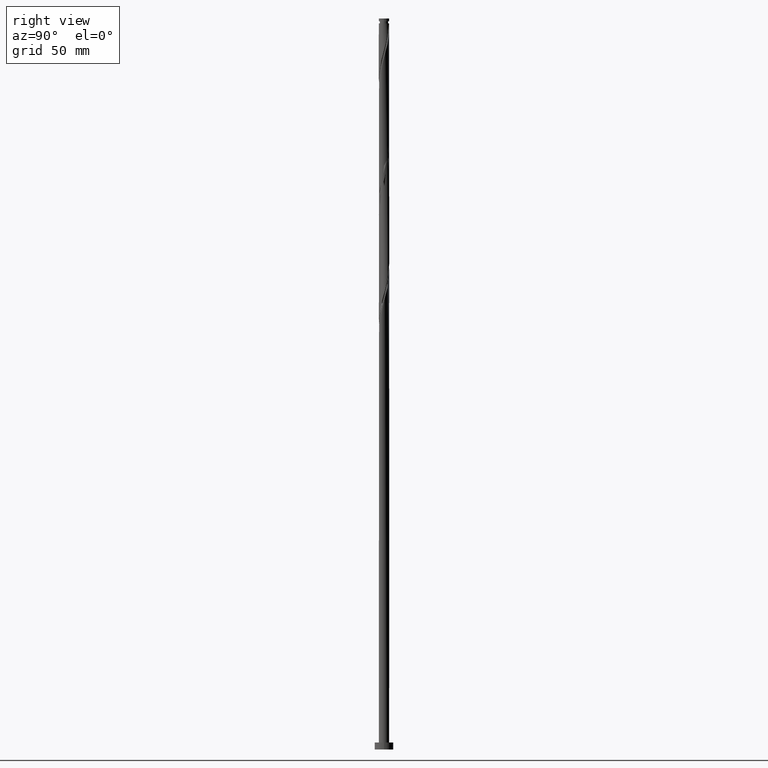
[diagram: clean part render]
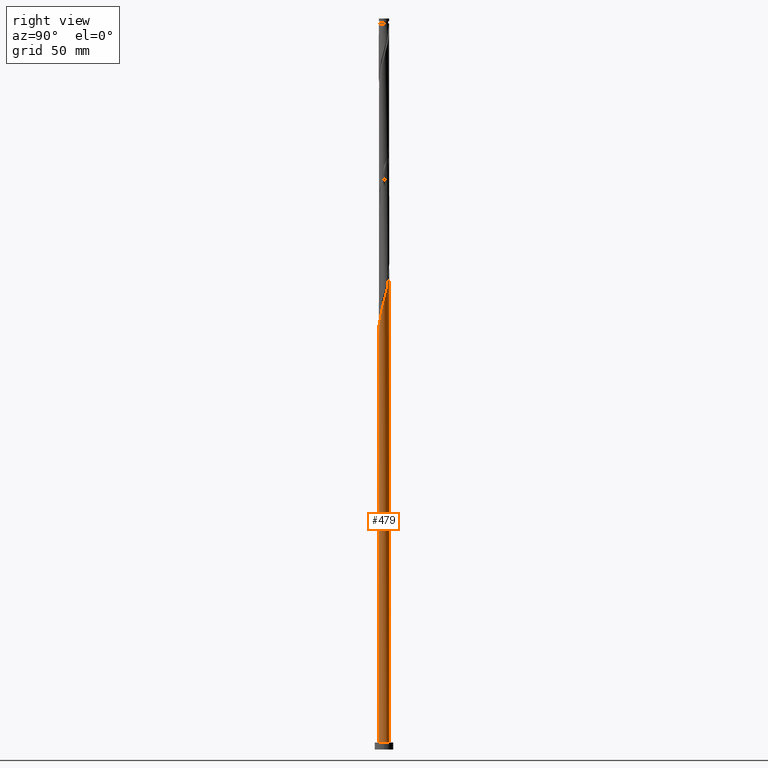
[diagram: same view with one face highlighted and labeled with its STEP entity id]
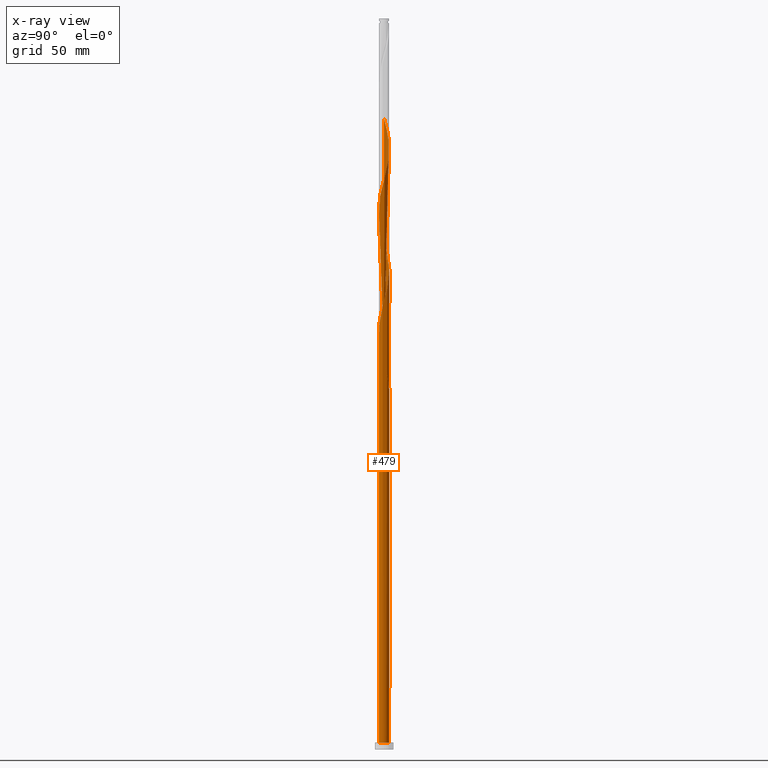
[diagram: x-ray of the same camera — body ghosted, the highlighted face saturated]
A machine part, right view. The second image highlights one B-rep face of the part: STEP entity #479.
The next image is the same camera in x-ray: the body ghosted, the highlighted face saturated — about 0% of this face is hidden behind the body in this view.
In plain terms, the highlighted cylindrical surface (bore or boss wall) has radius 2.25 mm, axis along (-0, -0, -1).
Its self-contained STEP definition (entity closure, byte-faithful):
#1 = CARTESIAN_POINT ( 'NONE',  ( -1.639118940635364119, -1.562068662012233933, 225.7445797550641942 ) ) ;
#4 = CARTESIAN_POINT ( 'NONE',  ( -1.250429829036464380, 1.887642616875907065, 161.9945797550642510 ) ) ;
#10 = CARTESIAN_POINT ( 'NONE',  ( 2.249348536561817991, -0.05414019825619617587, 192.9320797550641657 ) ) ;
#75 = CARTESIAN_POINT ( 'NONE',  ( -2.243248401257517788, 0.3075809107306282653, 165.7445797550642226 ) ) ;
#81 = EDGE_CURVE ( 'NONE', #1130, #1681, #345, .T. ) ;
#82 = DIRECTION ( 'NONE',  ( -0.000000000000000000, -0.000000000000000000, -1.000000000000000000 ) ) ;
#89 = CIRCLE ( 'NONE', #267, 2.250000000000000000 ) ;
#94 = CARTESIAN_POINT ( 'NONE',  ( -2.180905345038905097, 0.5533099276000278399, 269.8070797550643078 ) ) ;
#97 = CARTESIAN_POINT ( 'NONE',  ( 0.4477443466979814657, -2.205000000000001847, 181.6820797550641373 ) ) ;
#98 = CARTESIAN_POINT ( 'NONE',  ( 0.000000000000000000, 0.000000000000000000, 315.0000000000000000 ) ) ;
#111 = CARTESIAN_POINT ( 'NONE',  ( 1.250429829036465490, 1.887642616875907953, 253.8695797550641373 ) ) ;
#118 = AXIS2_PLACEMENT_3D ( 'NONE', #98, #383, #365 ) ;
#124 = CARTESIAN_POINT ( 'NONE',  ( 1.024734386752946591, 2.003102452848099180, 202.3070797550641942 ) ) ;
#126 = ORIENTED_EDGE ( 'NONE', *, *, #1792, .F. ) ;
#132 = CARTESIAN_POINT ( 'NONE',  ( -2.243248401257517788, 0.3075809107306282653, 218.2445797550641942 ) ) ;
#141 = CARTESIAN_POINT ( 'NONE',  ( 2.255448671866118193, 0.1993005142182362743, 193.8695797550642226 ) ) ;
#148 = ORIENTED_EDGE ( 'NONE', *, *, #165, .F. ) ;
#150 = CARTESIAN_POINT ( 'NONE',  ( -0.1993005142182361078, 2.255448671866118193, 206.9945797550642226 ) ) ;
#165 = EDGE_CURVE ( 'NONE', #1681, #857, #1027, .T. ) ;
#198 = CARTESIAN_POINT ( 'NONE',  ( -2.250000000000002220, -1.929156227657196178E-15, 166.8825626771580914 ) ) ;
#215 = CARTESIAN_POINT ( 'NONE',  ( -0.9271771204911514186, 2.050083556160028131, 157.3070797550641942 ) ) ;
#239 = DIRECTION ( 'NONE',  ( 1.000000000000000000, 0.000000000000000000, 0.000000000000000000 ) ) ;
#243 = CARTESIAN_POINT ( 'NONE',  ( 2.250000000000000000, 0.000000000000000000, 3.000000000000000000 ) ) ;
#249 = CARTESIAN_POINT ( 'NONE',  ( 2.255448671866118193, 0.1993005142182362743, 246.3695797550642510 ) ) ;
#260 = CARTESIAN_POINT ( 'NONE',  ( 1.639118940635364341, 1.562068662012233933, 251.9945797550642226 ) ) ;
#264 = CARTESIAN_POINT ( 'NONE',  ( -2.255448671866118193, -0.1993005142182365241, 220.1195797550642226 ) ) ;
#267 = AXIS2_PLACEMENT_3D ( 'NONE', #1507, #1759, #239 ) ;
#275 = CARTESIAN_POINT ( 'NONE',  ( 2.050083556160028131, 0.9271771204911510855, 196.6820797550641657 ) ) ;
#283 = CARTESIAN_POINT ( 'NONE',  ( -0.3075809107306283763, -2.243248401257517788, 231.3695797550642510 ) ) ;
#288 = LINE ( 'NONE', #429, #1414 ) ;
#292 = CARTESIAN_POINT ( 'NONE',  ( 0.3075809107306285428, 2.243248401257516900, 205.1195797550642226 ) ) ;
#303 = CARTESIAN_POINT ( 'NONE',  ( 0.9271771204911511965, -2.050083556160028131, 236.0570797550641942 ) ) ;
#305 = CARTESIAN_POINT ( 'NONE',  ( -1.792367362410765663, 1.360117361908404376, 164.8070797550641657 ) ) ;
#345 =( BOUNDED_CURVE ( )  B_SPLINE_CURVE ( 2, ( #358, #1165, #215, #1292, #1416, #765, #462, #613, #1149, #1447, #1715, #75, #1436, #992, #198 ),
 .UNSPECIFIED., .F., .T. ) 
 B_SPLINE_CURVE_WITH_KNOTS ( ( 3, 2, 2, 2, 2, 2, 2, 3 ),
 ( 0.000000000000000000, 0.008928571428571396851, 0.01785714285714290472, 0.02678571428571430157, 0.03571428571428569843, 0.04464285714285709528, 0.05357142857142860315, 0.05453034012992202806 ),
 .UNSPECIFIED. ) 
 CURVE ( )  GEOMETRIC_REPRESENTATION_ITEM ( )  RATIONAL_B_SPLINE_CURVE ( ( 0.9090909090909616852, 0.9033747362666364467, 0.9090909090909616852, 0.9033747362666364467, 0.9090909090909616852, 0.9033747362666364467, 0.9090909090909616852, 0.9033747362666364467, 0.9090909090909616852, 0.9033747362666364467, 0.9090909090909616852, 0.9033747362666364467, 0.9090909090909616852, 0.9084770030215034708, 0.9079949616362317233 ) ) 
 REPRESENTATION_ITEM ( '' )  );
#348 = CARTESIAN_POINT ( 'NONE',  ( -0.4477443466979812436, 2.205000000000001847, 155.4320797550641942 ) ) ;
#358 = CARTESIAN_POINT ( 'NONE',  ( -0.4477443466979812436, 2.205000000000001847, 155.4320797550641942 ) ) ;
#365 = DIRECTION ( 'NONE',  ( -1.000000000000000000, 0.000000000000000000, 0.000000000000000000 ) ) ;
#369 = VECTOR ( 'NONE', #82, 1000.000000000000000 ) ;
#377 = CARTESIAN_POINT ( 'NONE',  ( 1.887642616875908175, -1.250429829036465490, 240.7445797550641942 ) ) ;
#382 = CARTESIAN_POINT ( 'NONE',  ( 1.562068662012233933, -1.639118940635364119, 186.3695797550642510 ) ) ;
#383 = DIRECTION ( 'NONE',  ( -0.000000000000000000, -0.000000000000000000, -1.000000000000000000 ) ) ;
#386 = VERTEX_POINT ( 'NONE', #1009 ) ;
#387 = CARTESIAN_POINT ( 'NONE',  ( -1.887642616875908175, 1.250429829036465046, 266.9945797550641942 ) ) ;
#394 = CARTESIAN_POINT ( 'NONE',  ( -0.1993005142182361078, 2.255448671866118193, 259.4945797550641942 ) ) ;
#398 = CARTESIAN_POINT ( 'NONE',  ( -2.250000000000002220, -1.929156227657196178E-15, 166.8825626771580914 ) ) ;
#403 = CARTESIAN_POINT ( 'NONE',  ( 2.180905345038904652, -0.5533099276000280620, 243.5570797550641942 ) ) ;
#407 = CARTESIAN_POINT ( 'NONE',  ( 0.05414019825619634935, 2.249348536561817991, 206.0570797550642226 ) ) ;
#418 = CARTESIAN_POINT ( 'NONE',  ( -1.945615784186170538, -1.158166061804576374, 223.8695797550641942 ) ) ;
#424 = CARTESIAN_POINT ( 'NONE',  ( 1.444774384835914915, 1.724855639444071054, 200.4320797550642510 ) ) ;
#429 = CARTESIAN_POINT ( 'NONE',  ( -2.250000000000000000, 0.000000000000000000, 315.0000000000000000 ) ) ;
#432 = CARTESIAN_POINT ( 'NONE',  ( -2.154551328133885946, -0.6961881791777264628, 221.9945797550642226 ) ) ;
#435 = CARTESIAN_POINT ( 'NONE',  ( -0.7990389444694264709, 2.118562288820290185, 160.1195797550642510 ) ) ;
#446 = CARTESIAN_POINT ( 'NONE',  ( -1.945615784186168984, 1.158166061804576152, 165.7445797550642226 ) ) ;
#462 = CARTESIAN_POINT ( 'NONE',  ( -1.724855639444071276, 1.444774384835914693, 161.0570797550642226 ) ) ;
#478 = CARTESIAN_POINT ( 'NONE',  ( -2.250000000000000000, 0.000000000000000000, 3.000000000000000000 ) ) ;
#479 = ADVANCED_FACE ( 'NONE', ( #1603 ), #1466, .T. ) ;
#491 = VERTEX_POINT ( 'NONE', #243 ) ;
#504 = DIRECTION ( 'NONE',  ( -1.000000000000000000, 0.000000000000000000, 0.000000000000000000 ) ) ;
#512 = CARTESIAN_POINT ( 'NONE',  ( 2.249348536561817991, -0.05414019825619617587, 245.4320797550641942 ) ) ;
#517 = CARTESIAN_POINT ( 'NONE',  ( -2.050083556160028131, -0.9271771204911514186, 170.4320797550641942 ) ) ;
#524 = CARTESIAN_POINT ( 'NONE',  ( -2.205000000000001847, -0.4477443466979815212, 168.5570797550641942 ) ) ;
#531 = CARTESIAN_POINT ( 'NONE',  ( 0.05414019825619634935, 2.249348536561817991, 258.5570797550641942 ) ) ;
#534 = CARTESIAN_POINT ( 'NONE',  ( -2.154551328133885946, -0.6961881791777264628, 169.4945797550641942 ) ) ;
#541 = CARTESIAN_POINT ( 'NONE',  ( -1.360117361908405487, 1.792367362410767440, 264.1820797550641373 ) ) ;
#545 = CARTESIAN_POINT ( 'NONE',  ( -1.360117361908405487, 1.792367362410767440, 211.6820797550641942 ) ) ;
#547 = CARTESIAN_POINT ( 'NONE',  ( -2.154551328133884169, 0.6961881791777263517, 167.6195797550642794 ) ) ;
#552 = CARTESIAN_POINT ( 'NONE',  ( -1.024734386752946369, -2.003102452848099180, 228.5570797550641942 ) ) ;
#554 = CARTESIAN_POINT ( 'NONE',  ( -2.204999999999998739, 0.4477443466979816322, 168.5570797550641657 ) ) ;
#560 = CARTESIAN_POINT ( 'NONE',  ( -1.724855639444071276, 1.444774384835914693, 213.5570797550641657 ) ) ;
#566 = CARTESIAN_POINT ( 'NONE',  ( 2.205000000000001847, 0.4477443466979812436, 194.8070797550642226 ) ) ;
#568 = CARTESIAN_POINT ( 'NONE',  ( -2.250000000000000888, 2.354540773020688484E-15, 170.2315968329703253 ) ) ;
#603 = CARTESIAN_POINT ( 'NONE',  ( -2.250000000000002220, 1.548549002858290635E-15, 271.8825626771580914 ) ) ;
#606 = VERTEX_POINT ( 'NONE', #635 ) ;
#607 = AXIS2_PLACEMENT_3D ( 'NONE', #1046, #630, #504 ) ;
#613 = CARTESIAN_POINT ( 'NONE',  ( -1.887642616875908175, 1.250429829036465046, 161.9945797550641657 ) ) ;
#630 = DIRECTION ( 'NONE',  ( 0.000000000000000000, -0.000000000000000000, -1.000000000000000000 ) ) ;
#635 = CARTESIAN_POINT ( 'NONE',  ( -2.250000000000000888, 2.354540773020688484E-15, 170.2315968329703253 ) ) ;
#640 = DIRECTION ( 'NONE',  ( 0.000000000000000000, 0.000000000000000000, 1.000000000000000000 ) ) ;
#643 = CARTESIAN_POINT ( 'NONE',  ( 0.6961881791777264628, -2.154551328133885946, 182.6195797550642510 ) ) ;
#644 =( BOUNDED_CURVE ( )  B_SPLINE_CURVE ( 2, ( #398, #1206, #524, #534, #517, #1503, #907, #1061, #1180, #764, #1188, #1754, #1609, #1473, #780, #1327, #97, #643, #1762, #1048, #1617, #382, #1087, #1217, #1666, #1510, #1358, #832, #10, #141, #566, #1524, #275, #1644, #1654, #1789, #424, #816, #124, #1385, #1105, #292, #407, #150, #697, #942, #675, #806, #545, #1227, #560, #962, #1080, #1094, #1244, #132, #1366, #264, #1673, #432, #682, #418, #1798, #1, #951, #1376, #552, #1517, #1236, #283, #823, #688, #970, #1534, #303, #843, #1776, #1324, #777, #377, #1489, #1212, #403, #1176, #512, #249, #939, #914, #672, #794, #1344, #260, #661, #111, #1203, #1632, #1186, #802, #531, #394, #1069, #1499, #1785, #1055, #541, #1354, #1077, #387, #1749, #1642, #94, #922, #1482, #931, #786 ),
 .UNSPECIFIED., .F., .T. ) 
 B_SPLINE_CURVE_WITH_KNOTS ( ( 3, 2, 2, 2, 2, 2, 2, 2, 2, 2, 2, 2, 2, 2, 2, 2, 2, 2, 2, 2, 2, 2, 2, 2, 2, 2, 2, 2, 2, 2, 2, 2, 2, 2, 2, 2, 2, 2, 2, 2, 2, 2, 2, 2, 2, 2, 2, 2, 2, 2, 2, 2, 2, 2, 2, 2, 2, 3 ),
 ( 0.05453034012992202806, 0.06250000000000000000, 0.07142857142857139685, 0.08035714285714290472, 0.08928571428571430157, 0.09821428571428569843, 0.1071428571428570953, 0.1160714285714286031, 0.1250000000000000000, 0.1339285714285713969, 0.1428571428571429047, 0.1517857142857143016, 0.1607142857142856984, 0.1696428571428570953, 0.1785714285714286031, 0.1875000000000000000, 0.1964285714285713969, 0.2053571428571429047, 0.2142857142857143016, 0.2232142857142856984, 0.2321428571428570953, 0.2410714285714286031, 0.2500000000000000000, 0.2589285714285713969, 0.2678571428571429047, 0.2767857142857143016, 0.2857142857142856984, 0.2946428571428570953, 0.3035714285714286031, 0.3125000000000000000, 0.3214285714285713969, 0.3303571428571429047, 0.3392857142857143016, 0.3482142857142856984, 0.3571428571428570953, 0.3660714285714286031, 0.3750000000000000000, 0.3839285714285713969, 0.3928571428571429047, 0.4017857142857143016, 0.4107142857142856984, 0.4196428571428570953, 0.4285714285714286031, 0.4375000000000000000, 0.4464285714285713969, 0.4553571428571429047, 0.4642857142857143016, 0.4732142857142856984, 0.4821428571428570953, 0.4910714285714286031, 0.5000000000000000000, 0.5089285714285713969, 0.5178571428571427937, 0.5267857142857143016, 0.5357142857142856984, 0.5446428571428572063, 0.5535714285714286031, 0.5545303401299217505 ),
 .UNSPECIFIED. ) 
 CURVE ( )  GEOMETRIC_REPRESENTATION_ITEM ( )  RATIONAL_B_SPLINE_CURVE ( ( 0.9079949616362317233, 0.9039886423360947720, 0.9090909090909616852, 0.9033747362666364467, 0.9090909090909616852, 0.9033747362666364467, 0.9090909090909616852, 0.9033747362666364467, 0.9090909090909616852, 0.9033747362666364467, 0.9090909090909616852, 0.9033747362666364467, 0.9090909090909616852, 0.9033747362666364467, 0.9090909090909616852, 0.9033747362666364467, 0.9090909090909616852, 0.9033747362666364467, 0.9090909090909616852, 0.9033747362666364467, 0.9090909090909616852, 0.9033747362666364467, 0.9090909090909616852, 0.9033747362666364467, 0.9090909090909616852, 0.9033747362666364467, 0.9090909090909616852, 0.9033747362666364467, 0.9090909090909616852, 0.9033747362666364467, 0.9090909090909616852, 0.9033747362666364467, 0.9090909090909616852, 0.9033747362666364467, 0.9090909090909616852, 0.9033747362666364467, 0.9090909090909616852, 0.9033747362666364467, 0.9090909090909616852, 0.9033747362666364467, 0.9090909090909616852, 0.9033747362666364467, 0.9090909090909616852, 0.9033747362666364467, 0.9090909090909616852, 0.9033747362666364467, 0.9090909090909616852, 0.9033747362666364467, 0.9090909090909616852, 0.9033747362666364467, 0.9090909090909616852, 0.9033747362666364467, 0.9090909090909616852, 0.9033747362666364467, 0.9090909090909616852, 0.9033747362666364467, 0.9090909090909616852, 0.9033747362666364467, 0.9090909090909616852, 0.9033747362666364467, 0.9090909090909616852, 0.9033747362666364467, 0.9090909090909616852, 0.9033747362666364467, 0.9090909090909616852, 0.9033747362666364467, 0.9090909090909616852, 0.9033747362666364467, 0.9090909090909616852, 0.9033747362666364467, 0.9090909090909616852, 0.9033747362666364467, 0.9090909090909616852, 0.9033747362666364467, 0.9090909090909616852, 0.9033747362666364467, 0.9090909090909616852, 0.9033747362666364467, 0.9090909090909616852, 0.9033747362666364467, 0.9090909090909616852, 0.9033747362666364467, 0.9090909090909616852, 0.9033747362666364467, 0.9090909090909616852, 0.9033747362666364467, 0.9090909090909616852, 0.9033747362666364467, 0.9090909090909616852, 0.9033747362666364467, 0.9090909090909616852, 0.9033747362666364467, 0.9090909090909616852, 0.9033747362666364467, 0.9090909090909616852, 0.9033747362666364467, 0.9090909090909616852, 0.9033747362666364467, 0.9090909090909616852, 0.9033747362666364467, 0.9090909090909616852, 0.9033747362666364467, 0.9090909090909616852, 0.9033747362666364467, 0.9090909090909616852, 0.9033747362666364467, 0.9090909090909616852, 0.9033747362666364467, 0.9090909090909616852, 0.9033747362666364467, 0.9090909090909616852, 0.9033747362666364467, 0.9090909090909616852, 0.9084770030215036929, 0.9079949616362321674 ) ) 
 REPRESENTATION_ITEM ( '' )  );
#661 = CARTESIAN_POINT ( 'NONE',  ( 1.444774384835914915, 1.724855639444071054, 252.9320797550641657 ) ) ;
#672 = CARTESIAN_POINT ( 'NONE',  ( 2.050083556160028131, 0.9271771204911510855, 249.1820797550641373 ) ) ;
#675 = CARTESIAN_POINT ( 'NONE',  ( -0.9271771204911514186, 2.050083556160028131, 209.8070797550642226 ) ) ;
#682 = CARTESIAN_POINT ( 'NONE',  ( -2.050083556160028131, -0.9271771204911514186, 222.9320797550641657 ) ) ;
#684 = CARTESIAN_POINT ( 'NONE',  ( -1.444774384835913139, 1.724855639444069721, 162.9320797550641657 ) ) ;
#688 = CARTESIAN_POINT ( 'NONE',  ( 0.1993005142182363854, -2.255448671866118193, 233.2445797550642226 ) ) ;
#697 = CARTESIAN_POINT ( 'NONE',  ( -0.4477443466979811326, 2.205000000000001847, 207.9320797550641942 ) ) ;
#717 = CIRCLE ( 'NONE', #607, 2.250000000000000000 ) ;
#740 = EDGE_CURVE ( 'NONE', #606, #386, #842, .T. ) ;
#759 = EDGE_LOOP ( 'NONE', ( #126, #1028, #987, #1735, #938, #148, #965, #1718, #1210 ) ) ;
#764 = CARTESIAN_POINT ( 'NONE',  ( -1.250429829036465046, -1.887642616875907953, 175.1195797550642226 ) ) ;
#765 = CARTESIAN_POINT ( 'NONE',  ( -1.562068662012234377, 1.639118940635364119, 160.1195797550641657 ) ) ;
#777 = CARTESIAN_POINT ( 'NONE',  ( 1.724855639444071054, -1.444774384835914915, 239.8070797550641942 ) ) ;
#780 = CARTESIAN_POINT ( 'NONE',  ( -0.05414019825619597465, -2.249348536561817991, 179.8070797550642226 ) ) ;
#786 = CARTESIAN_POINT ( 'NONE',  ( -2.250000000000002220, 1.548549002858290635E-15, 271.8825626771580914 ) ) ;
#794 = CARTESIAN_POINT ( 'NONE',  ( 1.945615784186170538, 1.158166061804575486, 250.1195797550641657 ) ) ;
#802 = CARTESIAN_POINT ( 'NONE',  ( 0.3075809107306285428, 2.243248401257516900, 257.6195797550641373 ) ) ;
#806 = CARTESIAN_POINT ( 'NONE',  ( -1.158166061804576596, 1.945615784186170538, 210.7445797550642226 ) ) ;
#816 = CARTESIAN_POINT ( 'NONE',  ( 1.250429829036465490, 1.887642616875907953, 201.3695797550641657 ) ) ;
#818 = CARTESIAN_POINT ( 'NONE',  ( -0.05414019825619550280, 2.249348536561815326, 157.3070797550642226 ) ) ;
#823 = CARTESIAN_POINT ( 'NONE',  ( -0.05414019825619597465, -2.249348536561817991, 232.3070797550641942 ) ) ;
#832 = CARTESIAN_POINT ( 'NONE',  ( 2.243248401257516900, -0.3075809107306285428, 191.9945797550641942 ) ) ;
#842 =( BOUNDED_CURVE ( )  B_SPLINE_CURVE ( 2, ( #568, #1790, #554, #547, #1389, #446, #305, #1658, #684, #4, #1511, #435, #1090, #944, #818, #1239, #1255 ),
 .UNSPECIFIED., .F., .T. ) 
 B_SPLINE_CURVE_WITH_KNOTS ( ( 3, 2, 2, 2, 2, 2, 2, 2, 3 ),
 ( 0.9295303401299218615, 0.9375000000000000000, 0.9464285714285713969, 0.9553571428571429047, 0.9642857142857143016, 0.9732142857142856984, 0.9821428571428570953, 0.9910714285714286031, 1.000000000000000000 ),
 .UNSPECIFIED. ) 
 CURVE ( )  GEOMETRIC_REPRESENTATION_ITEM ( )  RATIONAL_B_SPLINE_CURVE ( ( 0.9079949616362281706, 0.9039886423360906642, 0.9090909090909577994, 0.9033747362666324499, 0.9090909090909577994, 0.9033747362666324499, 0.9090909090909577994, 0.9033747362666324499, 0.9090909090909577994, 0.9033747362666324499, 0.9090909090909577994, 0.9033747362666324499, 0.9090909090909577994, 0.9033747362666324499, 0.9090909090909577994, 0.9033747362666324499, 0.9090909090909577994 ) ) 
 REPRESENTATION_ITEM ( '' )  );
#843 = CARTESIAN_POINT ( 'NONE',  ( 1.158166061804576374, -1.945615784186170538, 236.9945797550642510 ) ) ;
#857 = VERTEX_POINT ( 'NONE', #478 ) ;
#864 = CIRCLE ( 'NONE', #1293, 2.250000000000000000 ) ;
#907 = CARTESIAN_POINT ( 'NONE',  ( -1.792367362410767440, -1.360117361908405487, 172.3070797550641657 ) ) ;
#914 = CARTESIAN_POINT ( 'NONE',  ( 2.154551328133885946, 0.6961881791777262407, 248.2445797550641657 ) ) ;
#922 = CARTESIAN_POINT ( 'NONE',  ( -2.243248401257517788, 0.3075809107306282653, 270.7445797550641942 ) ) ;
#930 = CARTESIAN_POINT ( 'NONE',  ( -2.250000000000002220, -1.929156227657195783E-15, 166.8825626771580914 ) ) ;
#931 = CARTESIAN_POINT ( 'NONE',  ( -2.250000000000002220, 0.02707401862438604465, 271.7821999889329732 ) ) ;
#938 = ORIENTED_EDGE ( 'NONE', *, *, #1462, .T. ) ;
#939 = CARTESIAN_POINT ( 'NONE',  ( 2.205000000000001847, 0.4477443466979812436, 247.3070797550641942 ) ) ;
#942 = CARTESIAN_POINT ( 'NONE',  ( -0.6961881791777266848, 2.154551328133885946, 208.8695797550641373 ) ) ;
#944 = CARTESIAN_POINT ( 'NONE',  ( -0.3075809107306279322, 2.243248401257516456, 158.2445797550642510 ) ) ;
#951 = CARTESIAN_POINT ( 'NONE',  ( -1.444774384835914915, -1.724855639444071276, 226.6820797550641942 ) ) ;
#958 = VERTEX_POINT ( 'NONE', #603 ) ;
#962 = CARTESIAN_POINT ( 'NONE',  ( -1.887642616875908175, 1.250429829036465046, 214.4945797550641942 ) ) ;
#965 = ORIENTED_EDGE ( 'NONE', *, *, #81, .F. ) ;
#970 = CARTESIAN_POINT ( 'NONE',  ( 0.4477443466979814657, -2.205000000000001847, 234.1820797550641942 ) ) ;
#987 = ORIENTED_EDGE ( 'NONE', *, *, #165, .T. ) ;
#992 = CARTESIAN_POINT ( 'NONE',  ( -2.250000000000002220, 0.02707401862437820717, 166.7821999889330300 ) ) ;
#1009 = CARTESIAN_POINT ( 'NONE',  ( 0.4477443466979819653, 2.204999999999999183, 155.4320797550641942 ) ) ;
#1027 = LINE ( 'NONE', #1157, #369 ) ;
#1028 = ORIENTED_EDGE ( 'NONE', *, *, #1229, .F. ) ;
#1046 = CARTESIAN_POINT ( 'NONE',  ( 0.000000000000000000, 0.000000000000000000, 155.4320797550641942 ) ) ;
#1048 = CARTESIAN_POINT ( 'NONE',  ( 1.158166061804576374, -1.945615784186170538, 184.4945797550642510 ) ) ;
#1055 = CARTESIAN_POINT ( 'NONE',  ( -1.158166061804576596, 1.945615784186170538, 263.2445797550641942 ) ) ;
#1061 = CARTESIAN_POINT ( 'NONE',  ( -1.639118940635364119, -1.562068662012233933, 173.2445797550642226 ) ) ;
#1069 = CARTESIAN_POINT ( 'NONE',  ( -0.4477443466979811326, 2.205000000000001847, 260.4320797550641942 ) ) ;
#1077 = CARTESIAN_POINT ( 'NONE',  ( -1.724855639444071276, 1.444774384835914693, 266.0570797550641373 ) ) ;
#1080 = CARTESIAN_POINT ( 'NONE',  ( -2.003102452848099624, 1.024734386752946369, 215.4320797550641657 ) ) ;
#1087 = CARTESIAN_POINT ( 'NONE',  ( 1.724855639444071054, -1.444774384835914915, 187.3070797550641657 ) ) ;
#1090 = CARTESIAN_POINT ( 'NONE',  ( -0.5533099276000269517, 2.180905345038903320, 159.1820797550642510 ) ) ;
#1094 = CARTESIAN_POINT ( 'NONE',  ( -2.118562288820291517, 0.7990389444694274701, 216.3695797550642510 ) ) ;
#1105 = CARTESIAN_POINT ( 'NONE',  ( 0.5533099276000282840, 2.180905345038904652, 204.1820797550641942 ) ) ;
#1130 = VERTEX_POINT ( 'NONE', #348 ) ;
#1149 = CARTESIAN_POINT ( 'NONE',  ( -2.003102452848099624, 1.024734386752946369, 162.9320797550641942 ) ) ;
#1157 = CARTESIAN_POINT ( 'NONE',  ( -2.250000000000000000, 0.000000000000000000, 315.0000000000000000 ) ) ;
#1165 = CARTESIAN_POINT ( 'NONE',  ( -0.6961881791777266848, 2.154551328133885946, 156.3695797550641942 ) ) ;
#1176 = CARTESIAN_POINT ( 'NONE',  ( 2.243248401257516900, -0.3075809107306285428, 244.4945797550642226 ) ) ;
#1180 = CARTESIAN_POINT ( 'NONE',  ( -1.444774384835914915, -1.724855639444071276, 174.1820797550642226 ) ) ;
#1186 = CARTESIAN_POINT ( 'NONE',  ( 0.5533099276000282840, 2.180905345038904652, 256.6820797550641942 ) ) ;
#1188 = CARTESIAN_POINT ( 'NONE',  ( -1.024734386752946369, -2.003102452848099180, 176.0570797550641657 ) ) ;
#1196 = CARTESIAN_POINT ( 'NONE',  ( 0.000000000000000000, 0.000000000000000000, 3.000000000000000000 ) ) ;
#1203 = CARTESIAN_POINT ( 'NONE',  ( 1.024734386752946591, 2.003102452848099180, 254.8070797550641657 ) ) ;
#1206 = CARTESIAN_POINT ( 'NONE',  ( -2.250000000000003109, -0.2261335084333234435, 167.7208337561217490 ) ) ;
#1210 = ORIENTED_EDGE ( 'NONE', *, *, #740, .F. ) ;
#1212 = CARTESIAN_POINT ( 'NONE',  ( 2.118562288820291517, -0.7990389444694278032, 242.6195797550642510 ) ) ;
#1217 = CARTESIAN_POINT ( 'NONE',  ( 1.887642616875908175, -1.250429829036465490, 188.2445797550641942 ) ) ;
#1227 = CARTESIAN_POINT ( 'NONE',  ( -1.562068662012234377, 1.639118940635364119, 212.6195797550642226 ) ) ;
#1229 = EDGE_CURVE ( 'NONE', #1681, #958, #644, .T. ) ;
#1236 = CARTESIAN_POINT ( 'NONE',  ( -0.5533099276000279509, -2.180905345038904652, 230.4320797550641942 ) ) ;
#1239 = CARTESIAN_POINT ( 'NONE',  ( 0.1993005142182367462, 2.255448671866116861, 156.3695797550642794 ) ) ;
#1241 = DIRECTION ( 'NONE',  ( -0.000000000000000000, -0.000000000000000000, -1.000000000000000000 ) ) ;
#1244 = CARTESIAN_POINT ( 'NONE',  ( -2.180905345038905097, 0.5533099276000278399, 217.3070797550641657 ) ) ;
#1255 = CARTESIAN_POINT ( 'NONE',  ( 0.4477443466979820208, 2.204999999999998739, 155.4320797550641942 ) ) ;
#1261 = EDGE_CURVE ( 'NONE', #857, #491, #89, .T. ) ;
#1292 = CARTESIAN_POINT ( 'NONE',  ( -1.158166061804576596, 1.945615784186170538, 158.2445797550641942 ) ) ;
#1293 = AXIS2_PLACEMENT_3D ( 'NONE', #1196, #640, #1768 ) ;
#1305 = EDGE_CURVE ( 'NONE', #1130, #386, #717, .T. ) ;
#1324 = CARTESIAN_POINT ( 'NONE',  ( 1.562068662012233933, -1.639118940635364119, 238.8695797550641657 ) ) ;
#1327 = CARTESIAN_POINT ( 'NONE',  ( 0.1993005142182363854, -2.255448671866118193, 180.7445797550641942 ) ) ;
#1344 = CARTESIAN_POINT ( 'NONE',  ( 1.792367362410767440, 1.360117361908405265, 251.0570797550641942 ) ) ;
#1354 = CARTESIAN_POINT ( 'NONE',  ( -1.562068662012234377, 1.639118940635364119, 265.1195797550643078 ) ) ;
#1358 = CARTESIAN_POINT ( 'NONE',  ( 2.180905345038904652, -0.5533099276000280620, 191.0570797550641942 ) ) ;
#1366 = CARTESIAN_POINT ( 'NONE',  ( -2.249348536561817991, 0.05414019825619586362, 219.1820797550642226 ) ) ;
#1376 = CARTESIAN_POINT ( 'NONE',  ( -1.250429829036465046, -1.887642616875907953, 227.6195797550641657 ) ) ;
#1385 = CARTESIAN_POINT ( 'NONE',  ( 0.7990389444694278032, 2.118562288820291517, 203.2445797550641942 ) ) ;
#1389 = CARTESIAN_POINT ( 'NONE',  ( -2.050083556160025910, 0.9271771204911509745, 166.6820797550642794 ) ) ;
#1414 = VECTOR ( 'NONE', #1241, 1000.000000000000000 ) ;
#1416 = CARTESIAN_POINT ( 'NONE',  ( -1.360117361908405487, 1.792367362410767440, 159.1820797550642510 ) ) ;
#1436 = CARTESIAN_POINT ( 'NONE',  ( -2.249348536561817991, 0.05414019825619586362, 166.6820797550641942 ) ) ;
#1447 = CARTESIAN_POINT ( 'NONE',  ( -2.118562288820291517, 0.7990389444694274701, 163.8695797550642226 ) ) ;
#1462 = EDGE_CURVE ( 'NONE', #491, #857, #864, .T. ) ;
#1466 = CYLINDRICAL_SURFACE ( 'NONE', #118, 2.250000000000000000 ) ;
#1473 = CARTESIAN_POINT ( 'NONE',  ( -0.3075809107306283763, -2.243248401257517788, 178.8695797550641373 ) ) ;
#1482 = CARTESIAN_POINT ( 'NONE',  ( -2.249348536561817991, 0.05414019825619586362, 271.6820797550641942 ) ) ;
#1489 = CARTESIAN_POINT ( 'NONE',  ( 2.003102452848099180, -1.024734386752946591, 241.6820797550642226 ) ) ;
#1499 = CARTESIAN_POINT ( 'NONE',  ( -0.6961881791777266848, 2.154551328133885946, 261.3695797550641942 ) ) ;
#1503 = CARTESIAN_POINT ( 'NONE',  ( -1.945615784186170538, -1.158166061804576374, 171.3695797550641089 ) ) ;
#1507 = CARTESIAN_POINT ( 'NONE',  ( 0.000000000000000000, 0.000000000000000000, 3.000000000000000000 ) ) ;
#1510 = CARTESIAN_POINT ( 'NONE',  ( 2.118562288820291517, -0.7990389444694278032, 190.1195797550642226 ) ) ;
#1511 = CARTESIAN_POINT ( 'NONE',  ( -1.024734386752945037, 2.003102452848098736, 161.0570797550641942 ) ) ;
#1517 = CARTESIAN_POINT ( 'NONE',  ( -0.7990389444694278032, -2.118562288820291517, 229.4945797550642226 ) ) ;
#1524 = CARTESIAN_POINT ( 'NONE',  ( 2.154551328133885946, 0.6961881791777262407, 195.7445797550642510 ) ) ;
#1534 = CARTESIAN_POINT ( 'NONE',  ( 0.6961881791777264628, -2.154551328133885946, 235.1195797550641657 ) ) ;
#1603 = FACE_OUTER_BOUND ( 'NONE', #759, .T. ) ;
#1609 = CARTESIAN_POINT ( 'NONE',  ( -0.5533099276000279509, -2.180905345038904652, 177.9320797550641942 ) ) ;
#1617 = CARTESIAN_POINT ( 'NONE',  ( 1.360117361908405265, -1.792367362410767440, 185.4320797550642226 ) ) ;
#1632 = CARTESIAN_POINT ( 'NONE',  ( 0.7990389444694278032, 2.118562288820291517, 255.7445797550641942 ) ) ;
#1642 = CARTESIAN_POINT ( 'NONE',  ( -2.118562288820291517, 0.7990389444694274701, 268.8695797550641942 ) ) ;
#1644 = CARTESIAN_POINT ( 'NONE',  ( 1.945615784186170538, 1.158166061804575486, 197.6195797550642226 ) ) ;
#1654 = CARTESIAN_POINT ( 'NONE',  ( 1.792367362410767440, 1.360117361908405265, 198.5570797550641942 ) ) ;
#1658 = CARTESIAN_POINT ( 'NONE',  ( -1.639118940635362343, 1.562068662012233267, 163.8695797550643078 ) ) ;
#1666 = CARTESIAN_POINT ( 'NONE',  ( 2.003102452848099180, -1.024734386752946591, 189.1820797550641942 ) ) ;
#1673 = CARTESIAN_POINT ( 'NONE',  ( -2.205000000000001847, -0.4477443466979815212, 221.0570797550642226 ) ) ;
#1681 = VERTEX_POINT ( 'NONE', #930 ) ;
#1715 = CARTESIAN_POINT ( 'NONE',  ( -2.180905345038905097, 0.5533099276000278399, 164.8070797550641942 ) ) ;
#1718 = ORIENTED_EDGE ( 'NONE', *, *, #1305, .T. ) ;
#1735 = ORIENTED_EDGE ( 'NONE', *, *, #1261, .T. ) ;
#1749 = CARTESIAN_POINT ( 'NONE',  ( -2.003102452848099624, 1.024734386752946369, 267.9320797550642510 ) ) ;
#1754 = CARTESIAN_POINT ( 'NONE',  ( -0.7990389444694278032, -2.118562288820291517, 176.9945797550642226 ) ) ;
#1759 = DIRECTION ( 'NONE',  ( 0.000000000000000000, 0.000000000000000000, 1.000000000000000000 ) ) ;
#1762 = CARTESIAN_POINT ( 'NONE',  ( 0.9271771204911511965, -2.050083556160028131, 183.5570797550641942 ) ) ;
#1768 = DIRECTION ( 'NONE',  ( 1.000000000000000000, 0.000000000000000000, 0.000000000000000000 ) ) ;
#1776 = CARTESIAN_POINT ( 'NONE',  ( 1.360117361908405265, -1.792367362410767440, 237.9320797550641657 ) ) ;
#1785 = CARTESIAN_POINT ( 'NONE',  ( -0.9271771204911514186, 2.050083556160028131, 262.3070797550642510 ) ) ;
#1789 = CARTESIAN_POINT ( 'NONE',  ( 1.639118940635364341, 1.562068662012233933, 199.4945797550641942 ) ) ;
#1790 = CARTESIAN_POINT ( 'NONE',  ( -2.250000000000001776, 0.2261335084333191692, 169.3933257540067245 ) ) ;
#1792 = EDGE_CURVE ( 'NONE', #958, #606, #288, .T. ) ;
#1798 = CARTESIAN_POINT ( 'NONE',  ( -1.792367362410767440, -1.360117361908405487, 224.8070797550641657 ) ) ;